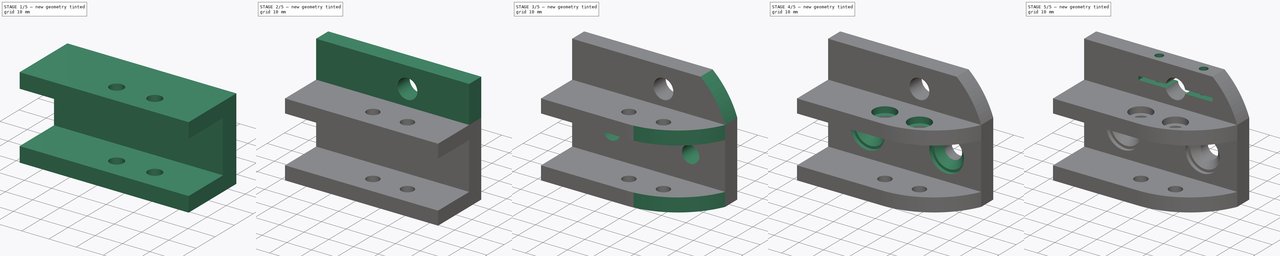
[diagram: build sequence overview — one tinted view per stage of 5, left to right]
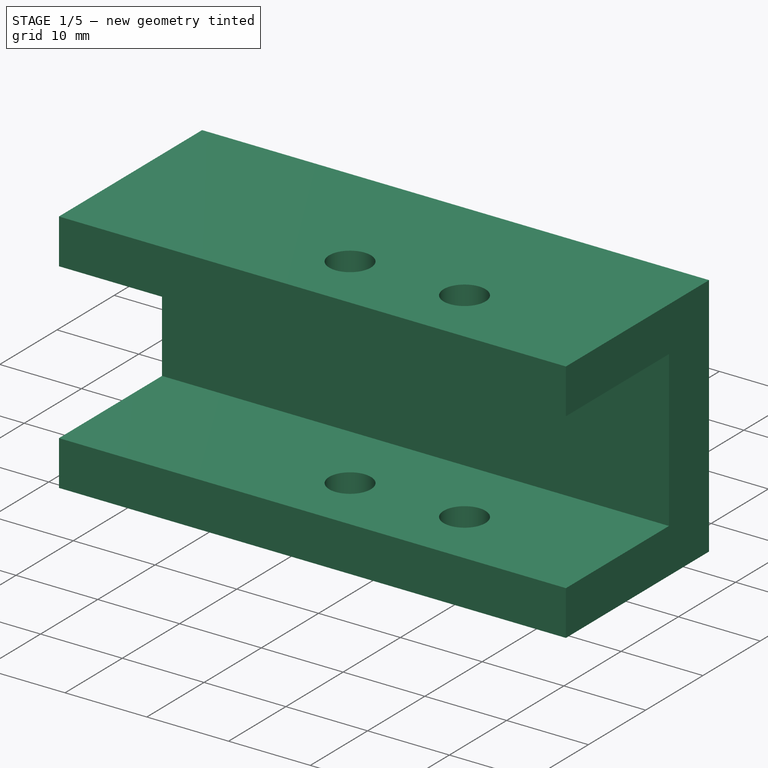
[diagram: stage 1 of 5 — iso view after this stage's code; geometry added in this stage tinted green]
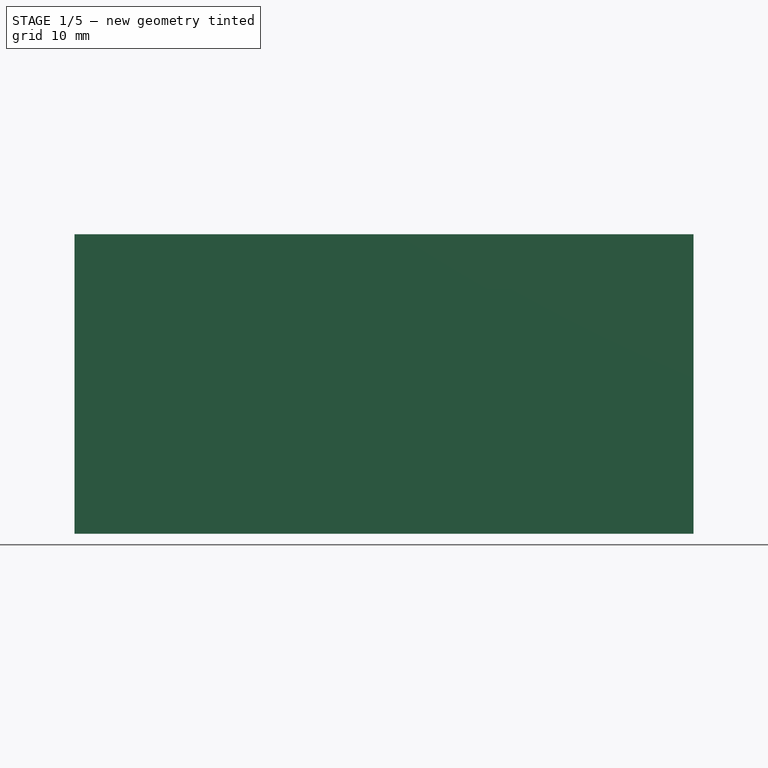
[diagram: stage 1 of 5 — front view after this stage's code; geometry added in this stage tinted green]
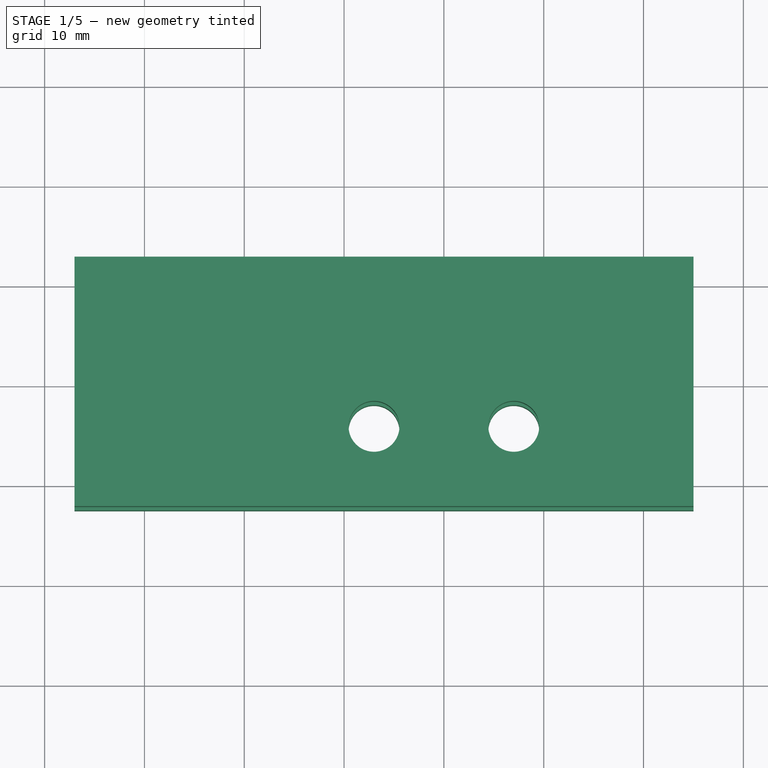
[diagram: stage 1 of 5 — top view after this stage's code; geometry added in this stage tinted green]
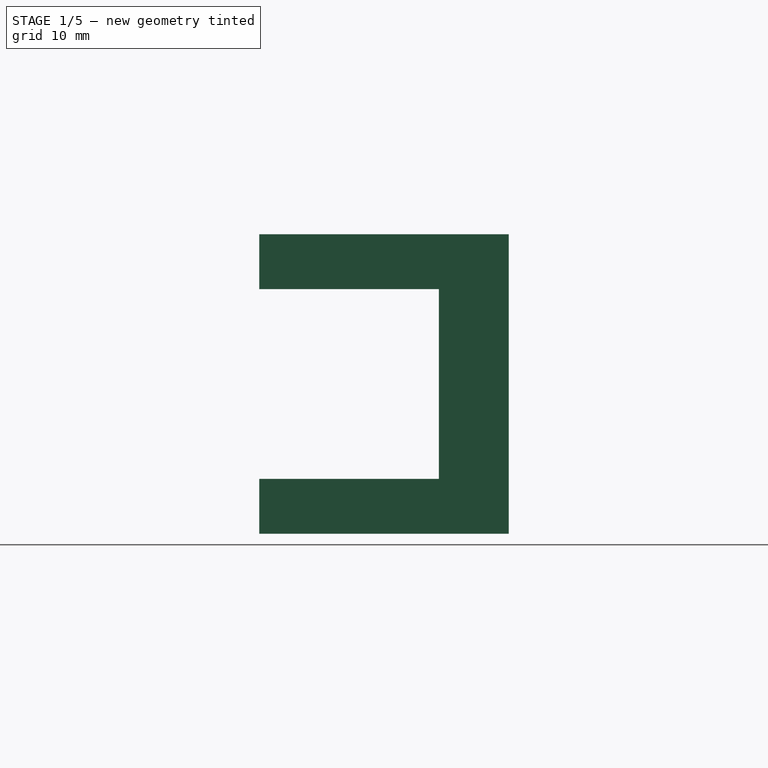
[diagram: stage 1 of 5 — right view after this stage's code; geometry added in this stage tinted green]
FCSTD DOCUMENT  (FreeCAD 0.17R10495 (Git))
Label: idler_holder_e
License: All rights reserved
LicenseURL: http://en.wikipedia.org/wiki/All_rights_reserved
objects: Sketcher::SketchObject×16, PartDesign::Pocket×13, PartDesign::Pad×3, PartDesign::Chamfer×1, PartDesign::Body×1
note: 50 computed .brp shape members not serialized (recipe doc carries the construction recipe); baked Part::Feature solids carry a one-line shape summary decoded from their .brp

FEATURE [Sketcher::SketchObject] Sketch
  MapMode = 5
  Support = -> [XY_Plane]
  sketch-geometry (4):
    g0: LineSegment StartX=-37 StartY=12.5 StartZ=0 EndX=25 EndY=12.5 EndZ=0
    g1: LineSegment StartX=25 StartY=12.5 StartZ=0 EndX=25 EndY=-12.5 EndZ=0
    g2: LineSegment StartX=25 StartY=-12.5 StartZ=0 EndX=-37 EndY=-12.5 EndZ=0
    g3: LineSegment StartX=-37 StartY=-12.5 StartZ=0 EndX=-37 EndY=12.5 EndZ=0
  constraints (12):
    c: Coincident(g0,g1)
    c: Coincident(g1,g2)
    c: Coincident(g2,g3)
    c: Coincident(g3,g0)
    c: Horizontal(g0)
    c: Horizontal(g2)
    c: Vertical(g1)
    c: Vertical(g3)
    c: DistanceX(g0,g0) = 62
    c: DistanceY(g3,g3) = 25
    c: Symmetric(g0,g2,g-1)
    c: DistanceX(g-1,g0) = 25
FEATURE [PartDesign::Pad] Pad
  Length = 30
  Length2 = 100
  Midplane = true
  Profile = -> Sketch
  Type = 0
FEATURE [Sketcher::SketchObject] Sketch001
  ExternalGeometry = -> [Pad]
  MapMode = 5
  Placement = pos=(0,0,0) rot=(0.57735,0.57735,0.57735;2.0944rad)
  Support = -> [YZ_Plane]
  sketch-geometry (4):
    g0: LineSegment StartX=-12.5 StartY=9.5 StartZ=0 EndX=5.5 EndY=9.5 EndZ=0
    g1: LineSegment StartX=5.5 StartY=9.5 StartZ=0 EndX=5.5 EndY=-9.5 EndZ=0
    g2: LineSegment StartX=5.5 StartY=-9.5 StartZ=0 EndX=-12.5 EndY=-9.5 EndZ=0
    g3: LineSegment StartX=-12.5 StartY=-9.5 StartZ=0 EndX=-12.5 EndY=9.5 EndZ=0
  constraints (12):
    c: Coincident(g0,g1)
    c: Coincident(g1,g2)
    c: Coincident(g2,g3)
    c: Coincident(g3,g0)
    c: Horizontal(g0)
    c: Horizontal(g2)
    c: Vertical(g1)
    c: Vertical(g3)
    c: PointOnObject(g0,g-3)
    c: DistanceY(g1,g0) = 19
    c: Symmetric(g0,g2,g-1)
    c: DistanceX(g0,g-4) = 7
FEATURE [PartDesign::Pocket] Pocket
  BaseFeature = -> Pad
  Length = 5
  Midplane = true
  Profile = -> Sketch001
  Type = 1
FEATURE [Sketcher::SketchObject] Sketch002
  ExternalGeometry = -> [Pocket]
  MapMode = 5
  Support = -> [XY_Plane]
  sketch-geometry (2):
    g0: Circle CenterX=-7 CenterY=-4.5 CenterZ=0 NormalX=0 NormalY=0 NormalZ=1 Radius=2.55
    g1: Circle CenterX=7 CenterY=-4.5 CenterZ=0 NormalX=0 NormalY=0 NormalZ=1 Radius=2.55
  constraints (5):
    c: Radius(g1) = 2.55
    c: Equal(g1,g0)
    c: Symmetric(g0,g1,g-2)
    c: DistanceX(g0,g1) = 14
    c: DistanceY(g0,g-3) = 10
FEATURE [PartDesign::Pocket] Pocket001
  BaseFeature = -> Pocket
  Length = 5
  Midplane = true
  Profile = -> Sketch002
  Type = 1
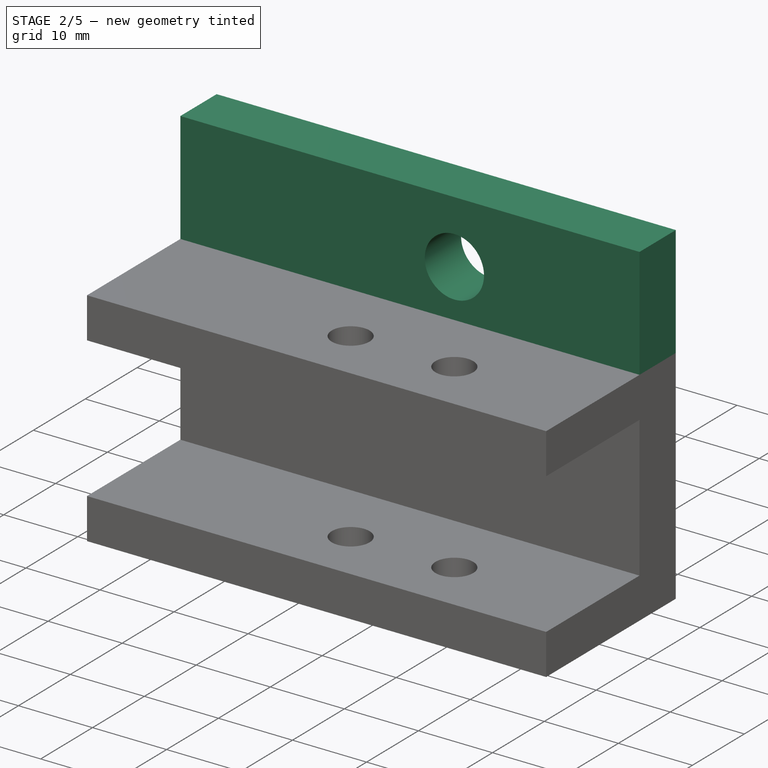
[diagram: stage 2 of 5 — iso view after this stage's code; geometry added in this stage tinted green]
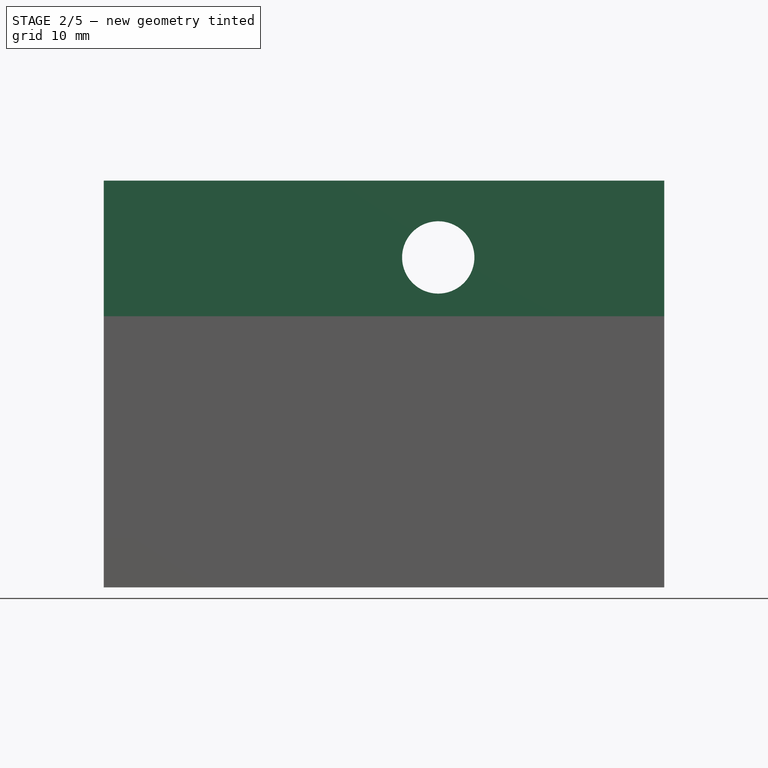
[diagram: stage 2 of 5 — front view after this stage's code; geometry added in this stage tinted green]
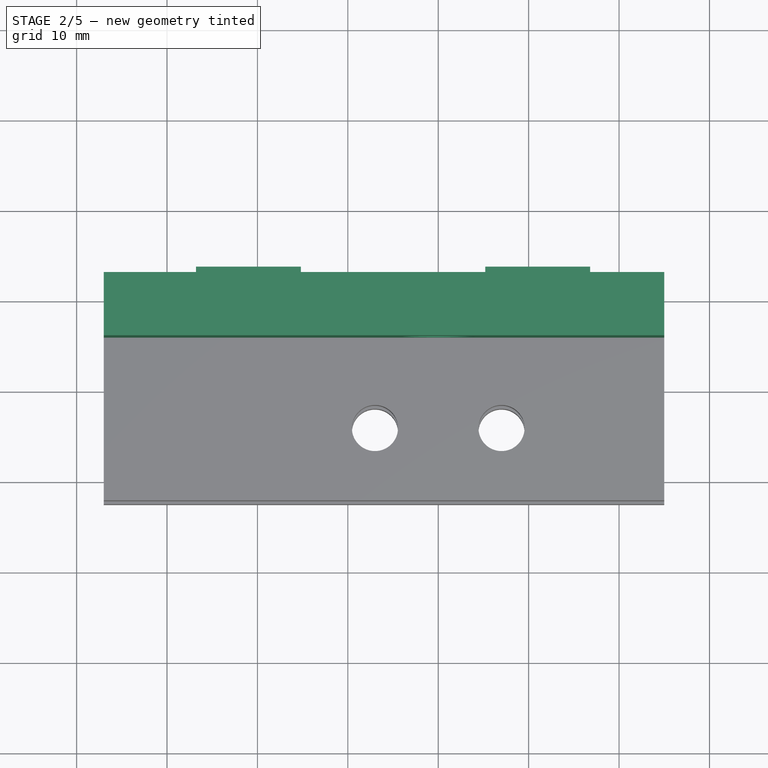
[diagram: stage 2 of 5 — top view after this stage's code; geometry added in this stage tinted green]
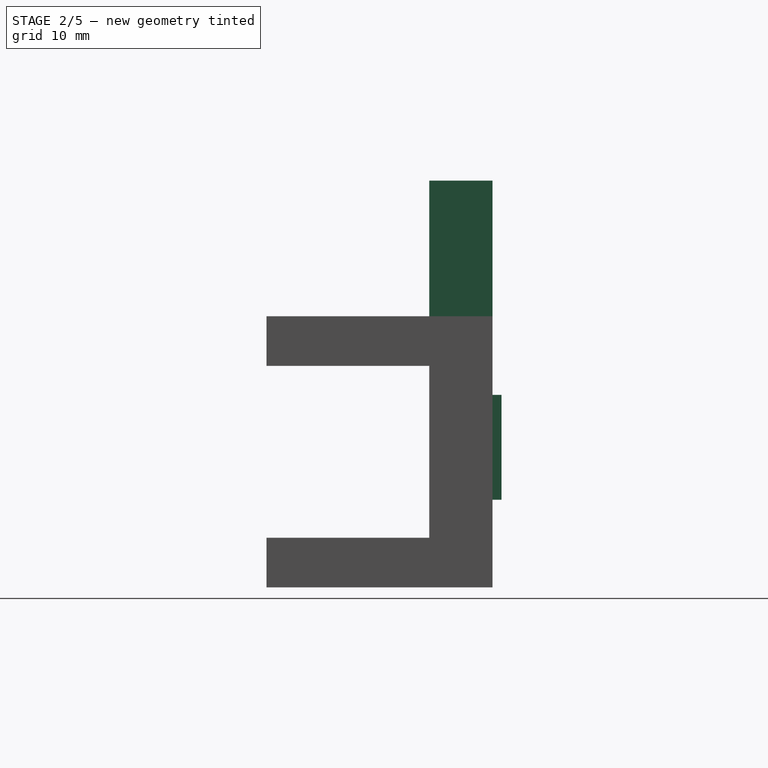
[diagram: stage 2 of 5 — right view after this stage's code; geometry added in this stage tinted green]
FEATURE [Sketcher::SketchObject] Sketch003
  ExternalGeometry = -> [Pocket001]
  MapMode = 5
  Support = -> [XY_Plane]
  sketch-geometry (4):
    g0: LineSegment StartX=-37 StartY=12.5 StartZ=0 EndX=25 EndY=12.5 EndZ=0
    g1: LineSegment StartX=25 StartY=12.5 StartZ=0 EndX=25 EndY=5.5 EndZ=0
    g2: LineSegment StartX=25 StartY=5.5 StartZ=0 EndX=-37 EndY=5.5 EndZ=0
    g3: LineSegment StartX=-37 StartY=5.5 StartZ=0 EndX=-37 EndY=12.5 EndZ=0
  constraints (10):
    c: Coincident(g0,g1)
    c: Coincident(g1,g2)
    c: Coincident(g2,g3)
    c: Coincident(g3,g0)
    c: Horizontal(g0)
    c: Horizontal(g2)
    c: Vertical(g1)
    c: Vertical(g3)
    c: Coincident(g0,g-3)
    c: Coincident(g1,g-4)
FEATURE [PartDesign::Pad] Pad001
  BaseFeature = -> Pocket001
  Length = 30
  Length2 = 100
  Profile = -> Sketch003
  Type = 0
FEATURE [Sketcher::SketchObject] Sketch004
  ExternalGeometry = -> [Pad001]
  MapMode = 5
  Placement = pos=(0,0,0) rot=(1,0,0;1.5708rad)
  Support = -> [XZ_Plane]
  sketch-geometry (1):
    g0: Circle CenterX=0 CenterY=21.5 CenterZ=0 NormalX=0 NormalY=0 NormalZ=1 Radius=4
  constraints (3):
    c: PointOnObject(g0,g-2)
    c: Radius(g0) = 4
    c: DistanceY(g-3,g0) = 12
FEATURE [PartDesign::Pocket] Pocket002
  BaseFeature = -> Pad001
  Length = 5
  Profile = -> Sketch004
  Type = 1
FEATURE [Sketcher::SketchObject] Sketch005
  ExternalGeometry = -> [Pocket002]
  MapMode = 5
  Placement = pos=(0,0,0) rot=(0.57735,0.57735,0.57735;2.0944rad)
  Support = -> [YZ_Plane]
  sketch-geometry (4):
    g0: LineSegment StartX=12.5 StartY=6.3 StartZ=0 EndX=13.5 EndY=6.3 EndZ=0
    g1: LineSegment StartX=13.5 StartY=6.3 StartZ=0 EndX=13.5 EndY=-5.3 EndZ=0
    g2: LineSegment StartX=13.5 StartY=-5.3 StartZ=0 EndX=12.5 EndY=-5.3 EndZ=0
    g3: LineSegment StartX=12.5 StartY=-5.3 StartZ=0 EndX=12.5 EndY=6.3 EndZ=0
  constraints (12):
    c: Coincident(g0,g1)
    c: Coincident(g1,g2)
    c: Coincident(g2,g3)
    c: Coincident(g3,g0)
    c: Horizontal(g0)
    c: Horizontal(g2)
    c: Vertical(g1)
    c: Vertical(g3)
    c: DistanceX(g2,g2) = -1
    c: DistanceY(g-3,g2) = 9.7
    c: DistanceY(g3,g3) = 11.6
    c: DistanceX(g-3,g2) = 0
FEATURE [PartDesign::Pad] Pad002
  BaseFeature = -> Pocket002
  Length = 16.8
  Length2 = 26.8
  Profile = -> Sketch005
  Type = 4
FEATURE [Sketcher::SketchObject] Sketch012
  ExternalGeometry = -> [Pad002]
  MapMode = 5
  Placement = pos=(0,0,-5.3) rot=(1,0,0;3.14159rad)
  Support = -> [Pad002]
  sketch-geometry (4):
    g0: LineSegment StartX=-15.2 StartY=-13.5 StartZ=0 EndX=5.2 EndY=-13.5 EndZ=0
    g1: LineSegment StartX=5.2 StartY=-13.5 StartZ=0 EndX=5.2 EndY=-12.5 EndZ=0
    g2: LineSegment StartX=5.2 StartY=-12.5 StartZ=0 EndX=-15.2 EndY=-12.5 EndZ=0
    g3: LineSegment StartX=-15.2 StartY=-12.5 StartZ=0 EndX=-15.2 EndY=-13.5 EndZ=0
  constraints (10):
    c: Coincident(g0,g1)
    c: Coincident(g1,g2)
    c: Coincident(g2,g3)
    c: Coincident(g3,g0)
    c: Horizontal(g0)
    c: Horizontal(g2)
    c: Vertical(g1)
    c: Vertical(g3)
    c: DistanceX(g0,g0) = 20.4
    c: DistanceX(g-2,g1) = 5.2
FEATURE [PartDesign::Pocket] Pocket003
  Length = 0
  Profile = -> Sketch012
  Type = 3
  UpToFace = -> Pad002 [Face16]
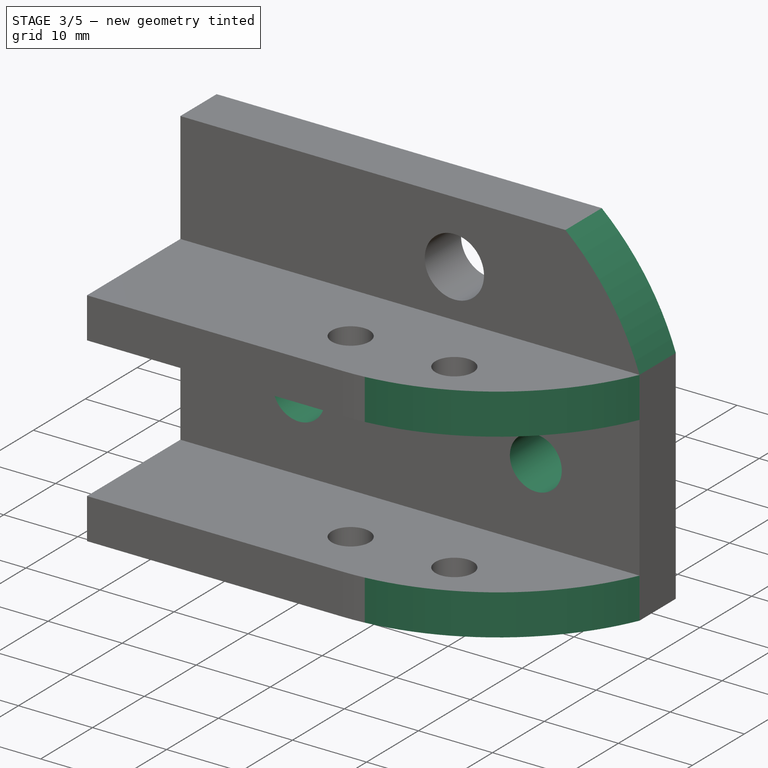
[diagram: stage 3 of 5 — iso view after this stage's code; geometry added in this stage tinted green]
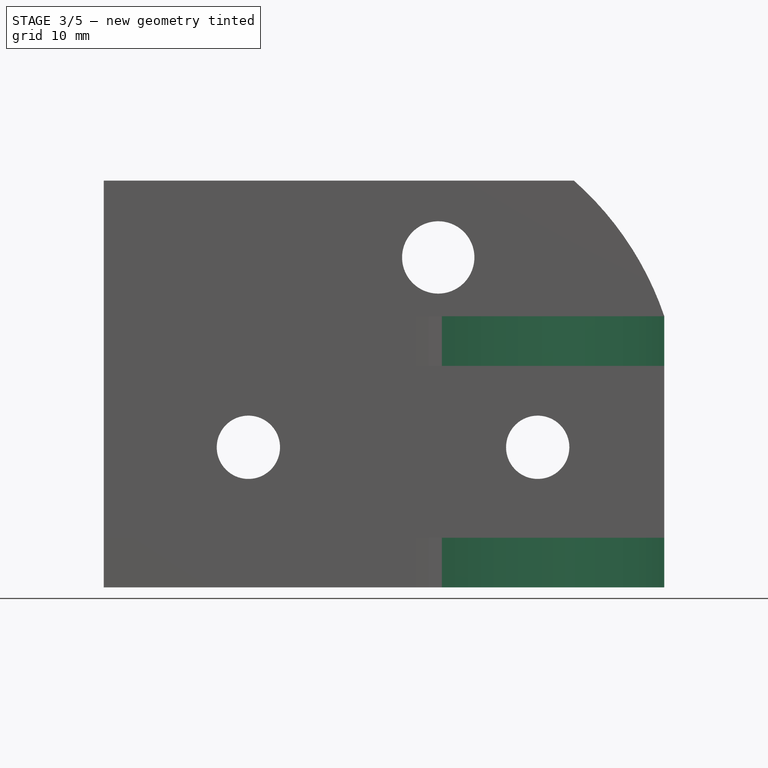
[diagram: stage 3 of 5 — front view after this stage's code; geometry added in this stage tinted green]
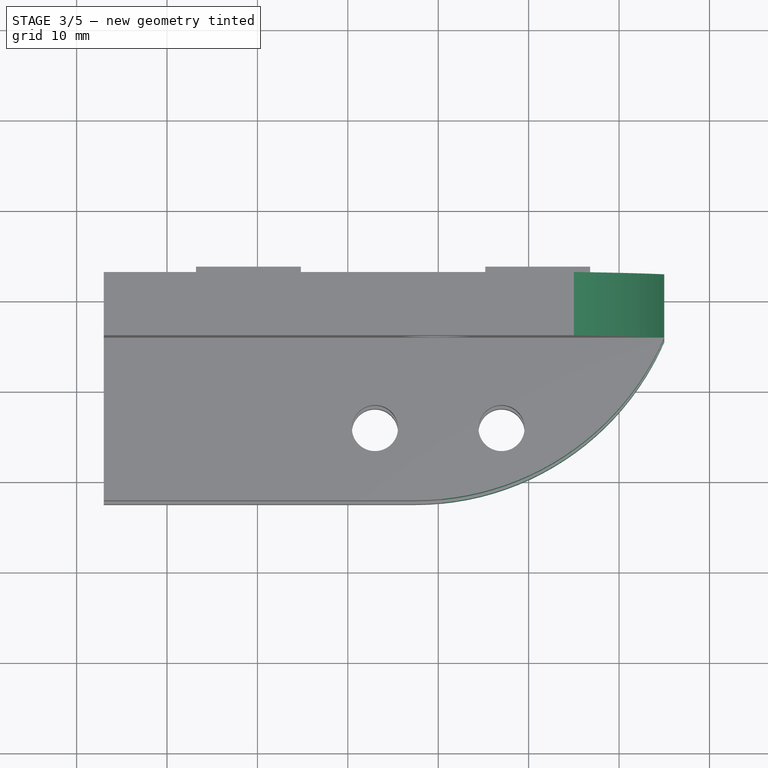
[diagram: stage 3 of 5 — top view after this stage's code; geometry added in this stage tinted green]
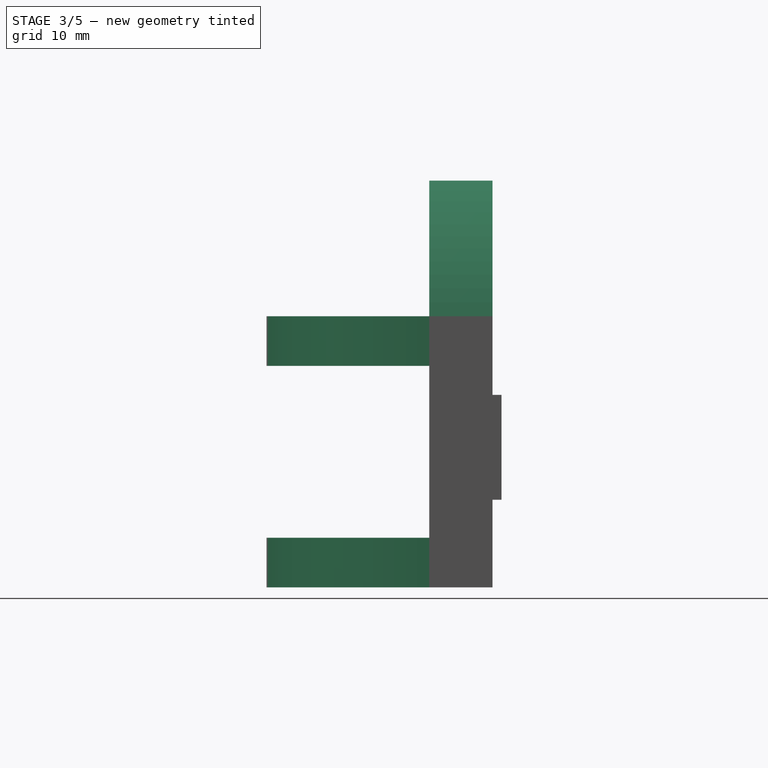
[diagram: stage 3 of 5 — right view after this stage's code; geometry added in this stage tinted green]
FEATURE [Sketcher::SketchObject] Sketch013
  ExternalGeometry = -> [Pocket003]
  MapMode = 5
  Placement = pos=(0,13.5,0) rot=(0,0.707107,0.707107;3.14159rad)
  Support = -> [Pocket003]
  sketch-geometry (2):
    g0: Circle CenterX=-11 CenterY=0.5 CenterZ=0 NormalX=0 NormalY=0 NormalZ=1 Radius=3.5
    g1: Circle CenterX=21 CenterY=0.5 CenterZ=0 NormalX=0 NormalY=0 NormalZ=1 Radius=3.5
  constraints (4):
    c: Symmetric(g-3,g-4,g0)
    c: Radius(g0) = 3.5
    c: Symmetric(g-5,g-6,g1)
    c: Radius(g1) = 3.5
FEATURE [PartDesign::Pocket] Pocket004
  BaseFeature = -> Pocket003
  Length = 5
  Profile = -> Sketch013
  Type = 1
FEATURE [Sketcher::SketchObject] Sketch014
  ExternalGeometry = -> [Pocket004]
  MapMode = 5
  Support = -> [XY_Plane]
  sketch-geometry (3):
    g0: ArcOfCircle CenterX=-2.49545 CenterY=17.5 CenterZ=0 NormalX=0 NormalY=0 NormalZ=1 Radius=30 StartAngle=4.71239 EndAngle=5.87167
    g1: LineSegment StartX=25 StartY=5.5 StartZ=0 EndX=25 EndY=-12.5 EndZ=0
    g2: LineSegment StartX=25 StartY=-12.5 StartZ=0 EndX=-2.49549 EndY=-12.5 EndZ=0
  constraints (9):
    c: Radius(g0) = 30
    c: Coincident(g0,g2)
    c: Tangent(g0,g2)
    c: Horizontal(g2)
    c: Coincident(g1,g2)
    c: Coincident(g1,g-3)
    c: Vertical(g1)
    c: Coincident(g0,g1)
    c: Coincident(g0,g-4)
FEATURE [PartDesign::Pocket] Pocket005
  BaseFeature = -> Pocket004
  Length = 5
  Midplane = true
  Profile = -> Sketch014
  Type = 1
FEATURE [Sketcher::SketchObject] Sketch015
  ExternalGeometry = -> [Pocket005]
  MapMode = 5
  Placement = pos=(0,0,0) rot=(1,0,0;1.5708rad)
  Support = -> [XZ_Plane]
  sketch-geometry (3):
    g0: ArcOfCircle CenterX=-8.13942 CenterY=3.74039 CenterZ=0 NormalX=0 NormalY=0 NormalZ=1 Radius=35 StartAngle=0.327528 EndAngle=0.848477
    g1: LineSegment StartX=25 StartY=15 StartZ=0 EndX=25 EndY=30 EndZ=0
    g2: LineSegment StartX=25 StartY=30 StartZ=0 EndX=15 EndY=30 EndZ=0
  constraints (9):
    c: Coincident(g0,g1)
    c: Coincident(g1,g2)
    c: Coincident(g2,g0)
    c: Horizontal(g2)
    c: Vertical(g1)
    c: Coincident(g0,g-3)
    c: Coincident(g1,g-3)
    c: Radius(g0) = 35
    c: DistanceX(g2,g2) = 10
FEATURE [PartDesign::Pocket] Pocket006
  BaseFeature = -> Pocket005
  Length = 5
  Profile = -> Sketch015
  Type = 1
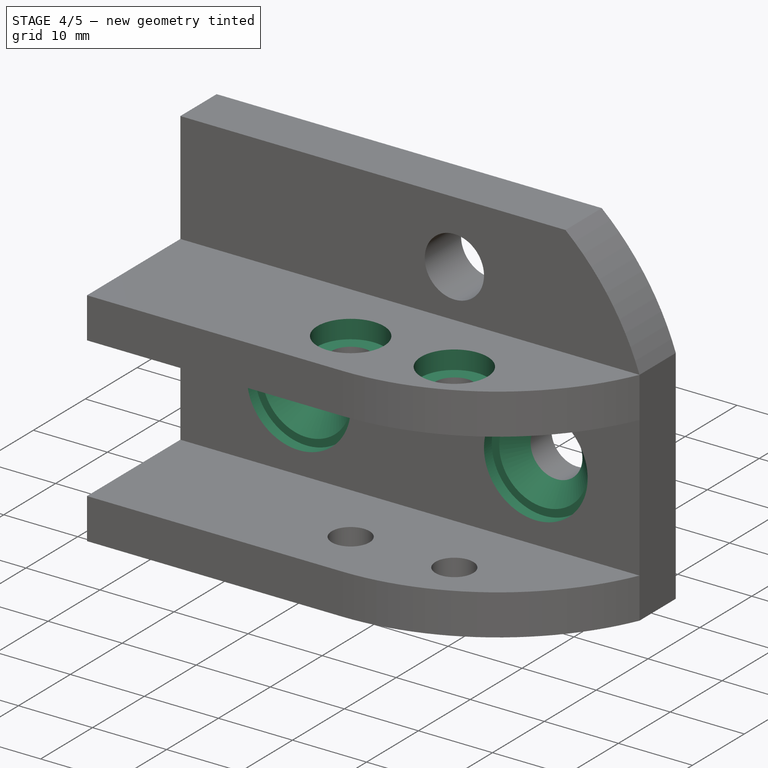
[diagram: stage 4 of 5 — iso view after this stage's code; geometry added in this stage tinted green]
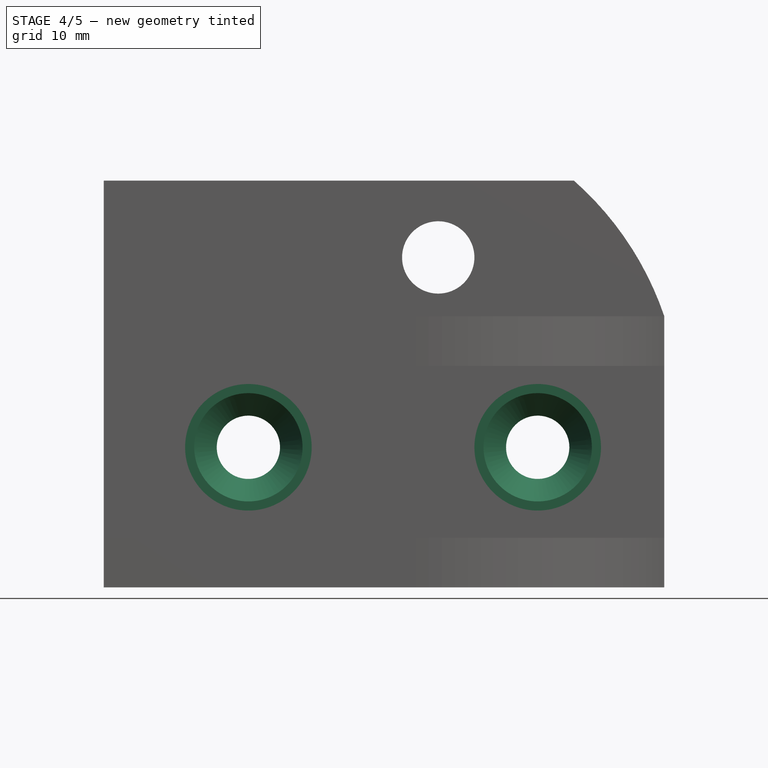
[diagram: stage 4 of 5 — front view after this stage's code; geometry added in this stage tinted green]
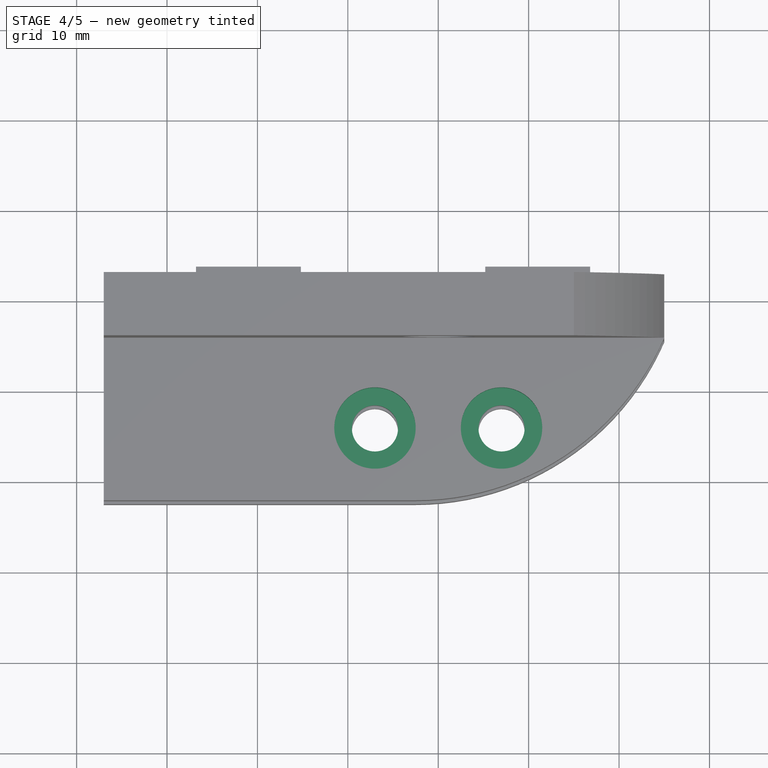
[diagram: stage 4 of 5 — top view after this stage's code; geometry added in this stage tinted green]
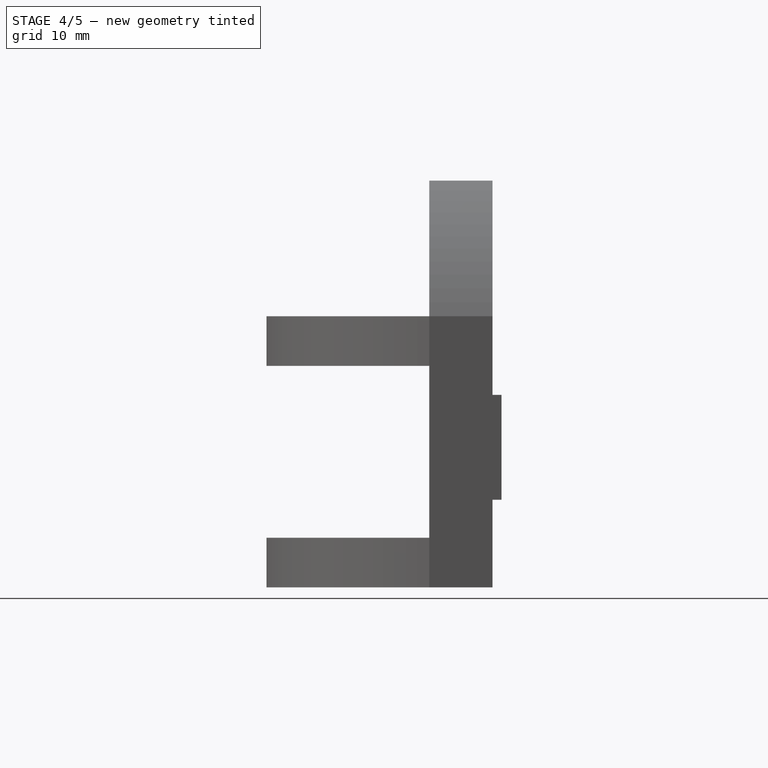
[diagram: stage 4 of 5 — right view after this stage's code; geometry added in this stage tinted green]
FEATURE [Sketcher::SketchObject] Sketch016
  ExternalGeometry = -> [Pocket006]
  MapMode = 5
  Placement = pos=(0,0,0) rot=(1,0,0;1.5708rad)
  Support = -> [XZ_Plane]
  sketch-geometry (2):
    g0: Circle CenterX=-21 CenterY=0.5 CenterZ=0 NormalX=0 NormalY=0 NormalZ=1 Radius=7
    g1: Circle CenterX=11 CenterY=0.5 CenterZ=0 NormalX=0 NormalY=0 NormalZ=1 Radius=7
  constraints (3):
    c: Radius(g1) = 7
    c: Equal(g1,g0)
    c: Coincident(g0,g-3)
FEATURE [PartDesign::Pocket] Pocket007
  BaseFeature = -> Pocket006
  Length = 7
  Profile = -> Sketch016
  Type = 0
FEATURE [PartDesign::Chamfer] Chamfer
  Base = -> Pocket007 [Edge105,Edge106]
  BaseFeature = -> Pocket007
  Size = 2.49
FEATURE [Sketcher::SketchObject] Sketch018
  MapMode = 5
  Placement = pos=(0,0,-15) rot=(1,0,0;3.14159rad)
  sketch-geometry (14):
    g0: LineSegment StartX=-9.33827 StartY=0.45 StartZ=0 EndX=-4.66173 EndY=0.45 EndZ=0
    g1: LineSegment StartX=-4.66173 StartY=0.45 StartZ=0 EndX=-2.32346 EndY=4.5 EndZ=0
    g2: LineSegment StartX=-2.32346 StartY=4.5 StartZ=0 EndX=-4.66173 EndY=8.55 EndZ=0
    g3: LineSegment StartX=-4.66173 StartY=8.55 StartZ=0 EndX=-9.33827 EndY=8.55 EndZ=0
    g4: LineSegment StartX=-9.33827 StartY=8.55 StartZ=0 EndX=-11.6765 EndY=4.5 EndZ=0
    g5: LineSegment StartX=-11.6765 StartY=4.5 StartZ=0 EndX=-9.33827 EndY=0.45 EndZ=0
    g6: Circle [constr] CenterX=-7 CenterY=4.5 CenterZ=0 NormalX=0 NormalY=0 NormalZ=1 Radius=4.67654
    g7: LineSegment StartX=9.33827 StartY=0.45 StartZ=0 EndX=11.6765 EndY=4.5 EndZ=0
    g8: LineSegment StartX=11.6765 StartY=4.5 StartZ=0 EndX=9.33827 EndY=8.55 EndZ=0
    g9: LineSegment StartX=9.33827 StartY=8.55 StartZ=0 EndX=4.66173 EndY=8.55 EndZ=0
    g10: LineSegment StartX=4.66173 StartY=8.55 StartZ=0 EndX=2.32346 EndY=4.5 EndZ=0
    g11: LineSegment StartX=2.32346 StartY=4.5 StartZ=0 EndX=4.66173 EndY=0.45 EndZ=0
    g12: LineSegment StartX=4.66173 StartY=0.45 StartZ=0 EndX=9.33827 EndY=0.45 EndZ=0
    g13: Circle [constr] CenterX=7 CenterY=4.5 CenterZ=0 NormalX=0 NormalY=0 NormalZ=1 Radius=4.67654
  constraints (30):
    c: Coincident(g0,g1)
    c: Coincident(g1,g2)
    c: Coincident(g2,g3)
    c: Coincident(g3,g4)
    c: Coincident(g4,g5)
    c: Coincident(g5,g0)
    c: Equal(g0, g1-g5) x5
    c: PointOnObject(g0,g6)
    c: PointOnObject(g1,g6)
    c: PointOnObject(g2,g6)
    c: PointOnObject(g3,g6)
    c: PointOnObject(g4,g6)
    c: PointOnObject(g5,g6)
    c: Coincident(g7,g8)
    c: Coincident(g8,g9)
    c: Coincident(g9,g10)
    c: Coincident(g10,g11)
    c: Coincident(g11,g12)
    c: Coincident(g12,g7)
    c: Equal(g7, g8-g12) x5
    c: PointOnObject(g7,g13)
    c: PointOnObject(g8,g13)
    c: PointOnObject(g9,g13)
    c: PointOnObject(g10,g13)
    c: PointOnObject(g11,g13)
    c: PointOnObject(g12,g13)
    c: Horizontal(g9)
    c: Horizontal(g3)
    c: DistanceY(g0,g3) = 8.1
    c: DistanceY(g11,g9) = 8.1
FEATURE [Sketcher::SketchObject] Sketch019
  MapMode = 5
  Placement = pos=(0,0,15) rot=(0,0,1;0rad)
  sketch-geometry (2):
    g0: Circle CenterX=-7 CenterY=-4.5 CenterZ=0 NormalX=0 NormalY=0 NormalZ=1 Radius=4.5
    g1: Circle CenterX=7 CenterY=-4.5 CenterZ=0 NormalX=0 NormalY=0 NormalZ=1 Radius=4.5
  constraints (2):
    c: Radius(g1) = 4.5
    c: Equal(g1,g0)
FEATURE [PartDesign::Pocket] Pocket008
  BaseFeature = -> Chamfer
  Length = 2.5
  Profile = -> Sketch018
  Type = 0
FEATURE [PartDesign::Pocket] Pocket009
  BaseFeature = -> Pocket008
  Length = 2.5
  Profile = -> Sketch019
  Type = 0
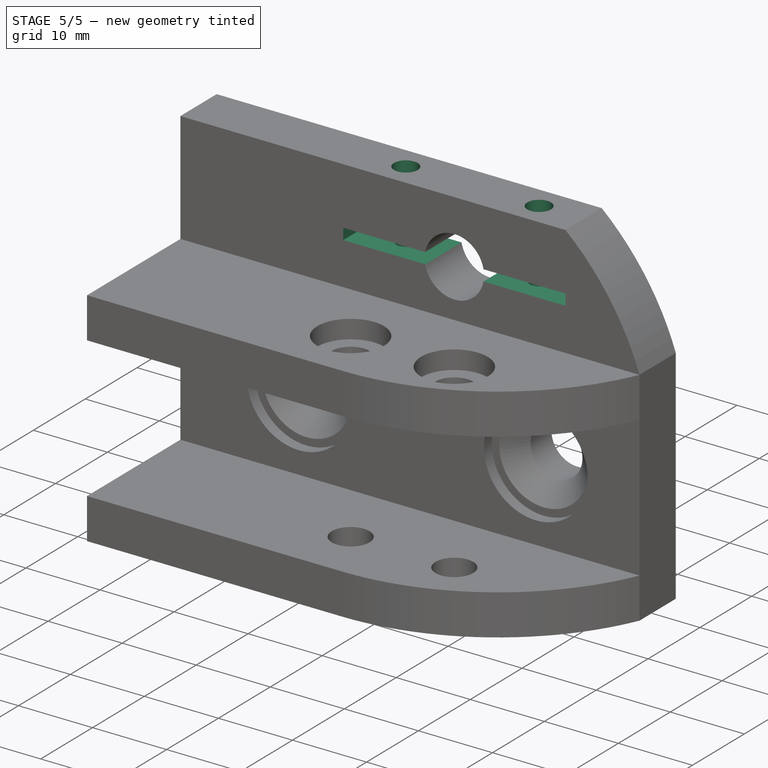
[diagram: stage 5 of 5 — iso view after this stage's code; geometry added in this stage tinted green]
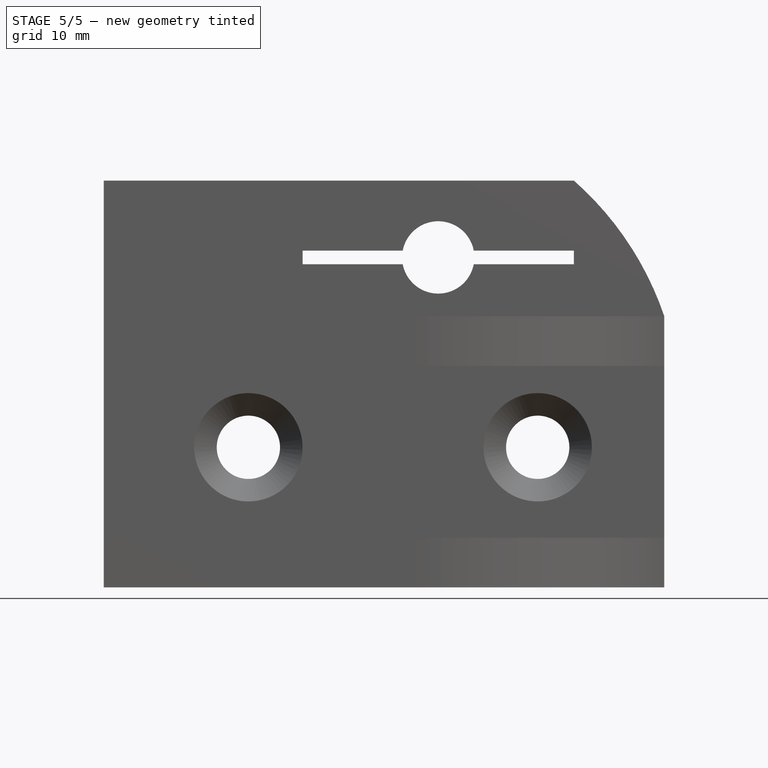
[diagram: stage 5 of 5 — front view after this stage's code; geometry added in this stage tinted green]
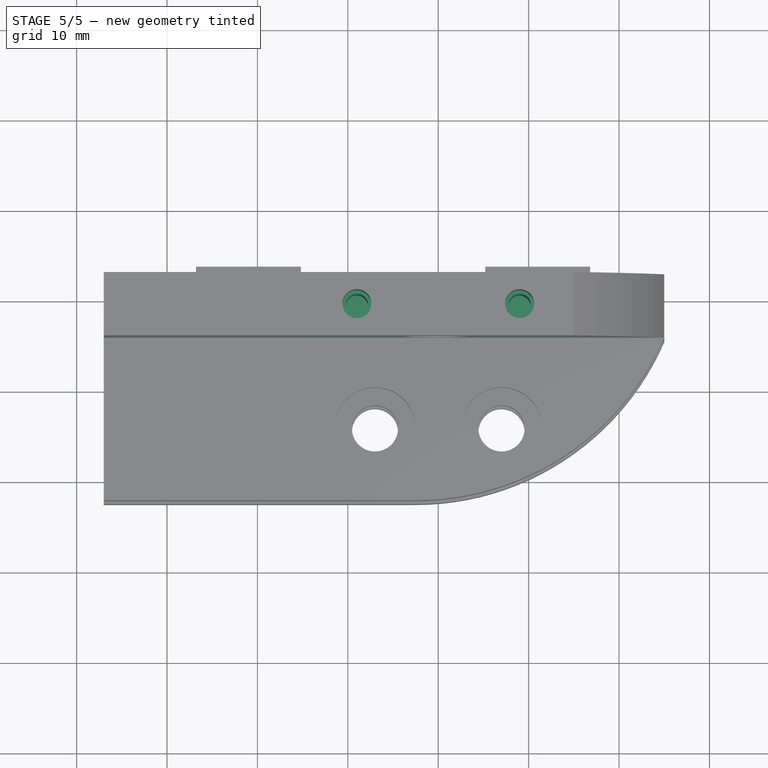
[diagram: stage 5 of 5 — top view after this stage's code; geometry added in this stage tinted green]
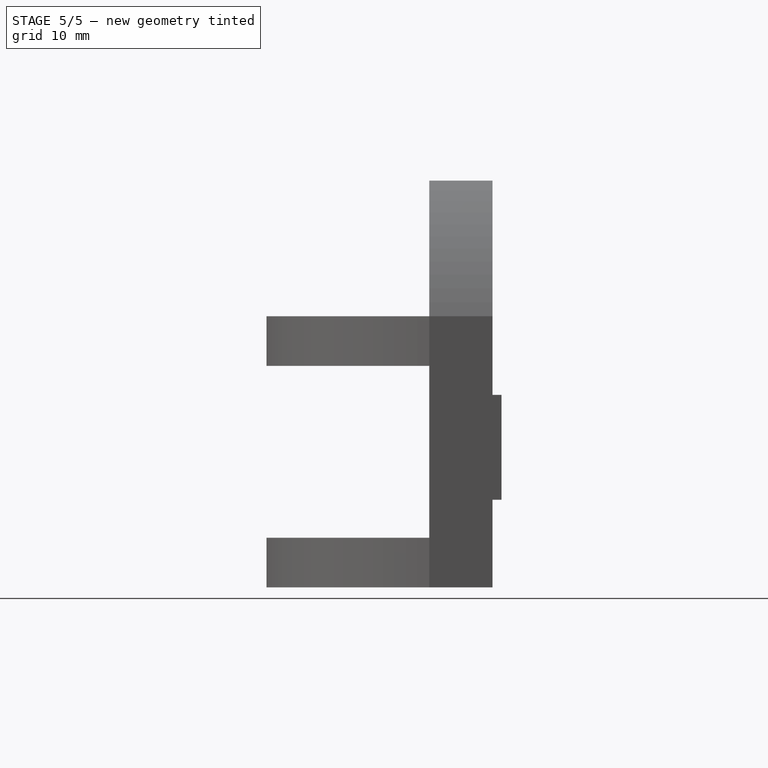
[diagram: stage 5 of 5 — right view after this stage's code; geometry added in this stage tinted green]
FEATURE [Sketcher::SketchObject] Sketch020
  ExternalGeometry = -> [Pocket009]
  MapMode = 5
  Placement = pos=(0,5.5,0) rot=(1,0,0;1.5708rad)
  Support = -> [Pocket009]
  sketch-geometry (4):
    g0: LineSegment StartX=-15 StartY=22.25 StartZ=0 EndX=15 EndY=22.25 EndZ=0
    g1: LineSegment StartX=15 StartY=22.25 StartZ=0 EndX=15 EndY=20.75 EndZ=0
    g2: LineSegment StartX=15 StartY=20.75 StartZ=0 EndX=-15 EndY=20.75 EndZ=0
    g3: LineSegment StartX=-15 StartY=20.75 StartZ=0 EndX=-15 EndY=22.25 EndZ=0
  constraints (11):
    c: Coincident(g0,g1)
    c: Coincident(g1,g2)
    c: Coincident(g2,g3)
    c: Coincident(g3,g0)
    c: Horizontal(g0)
    c: Horizontal(g2)
    c: Vertical(g1)
    c: Vertical(g3)
    c: Symmetric(g0,g1,g-3)
    c: DistanceX(g0,g0) = 30
    c: DistanceY(g3,g3) = 1.5
FEATURE [PartDesign::Pocket] Pocket010
  BaseFeature = -> Pocket009
  Length = 5
  Profile = -> Sketch020
  Type = 1
FEATURE [Sketcher::SketchObject] Sketch021
  ExternalGeometry = -> [Pocket010]
  MapMode = 5
  Placement = pos=(0,0,30) rot=(0,0,1;0rad)
  Support = -> [Pocket010]
  sketch-geometry (2):
    g0: Circle CenterX=9 CenterY=9 CenterZ=0 NormalX=0 NormalY=0 NormalZ=1 Radius=1.25
    g1: Circle CenterX=-9 CenterY=9 CenterZ=0 NormalX=0 NormalY=0 NormalZ=1 Radius=1.25
  constraints (6):
    c: Radius(g1) = 1.25
    c: Equal(g1,g0)
    c: DistanceY(g0,g-3) = 3.5
    c: DistanceY(g1,g0) = 0
    c: Symmetric(g1,g0,g-2)
    c: DistanceX(g1,g-1) = 9
FEATURE [PartDesign::Pocket] Pocket011
  BaseFeature = -> Pocket010
  Length = 22
  Profile = -> Sketch021
  Type = 0
FEATURE [Sketcher::SketchObject] Sketch022
  ExternalGeometry = -> [Pocket011]
  MapMode = 5
  Placement = pos=(0,0,30) rot=(0,0,1;0rad)
  Support = -> [Pocket011]
  sketch-geometry (2):
    g0: Circle CenterX=-9 CenterY=9 CenterZ=0 NormalX=0 NormalY=0 NormalZ=1 Radius=1.6
    g1: Circle CenterX=9 CenterY=9 CenterZ=0 NormalX=0 NormalY=0 NormalZ=1 Radius=1.6
FEATURE [PartDesign::Pocket] Pocket012
  BaseFeature = -> Pocket011
  Length = 8
  Profile = -> Sketch022
  Type = 0
FEATURE [PartDesign::Body] Body
  Group = -> [Sketch,Pad,Sketch001,Sketch005,Pocket,Sketch002,Pocket001,Sketch003,Pad001,Sketch004,Pocket002,Pad002,Sketch012,Pocket003,Sketch013,Pocket004,Sketch014,Pocket005,Sketch015,Pocket006,Sketch016,Pocket007,Chamfer,Sketch018,Pocket008,Sketch019,Pocket009,Sketch020,Pocket010,Sketch021,Pocket011,Sketch022,Pocket012]
  Origin = -> BodyOrigin
  Tip = -> Pocket012
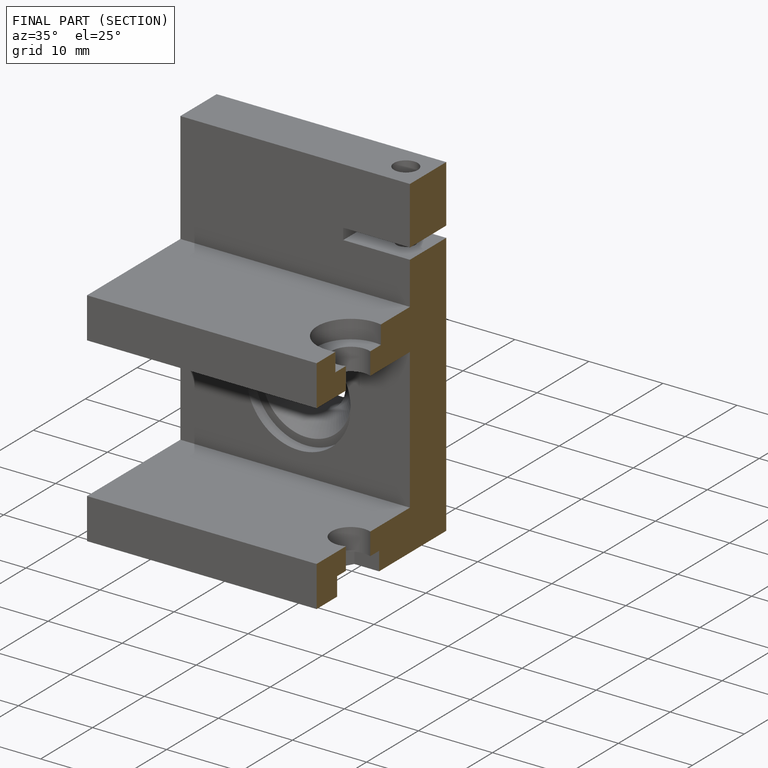
[diagram: finished part — half-section view (interior)]
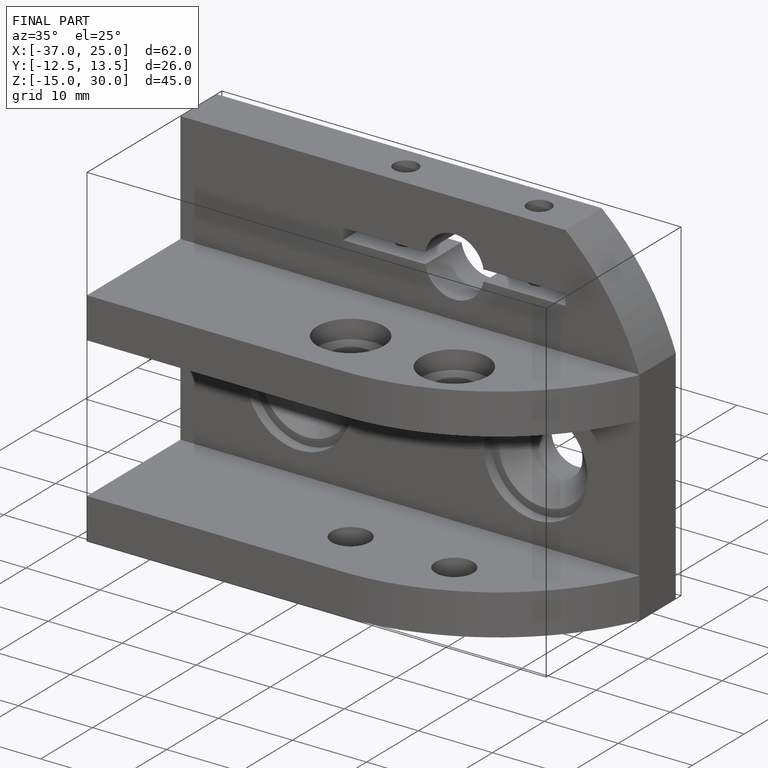
[diagram: finished part — iso view with bounding-box wireframe]
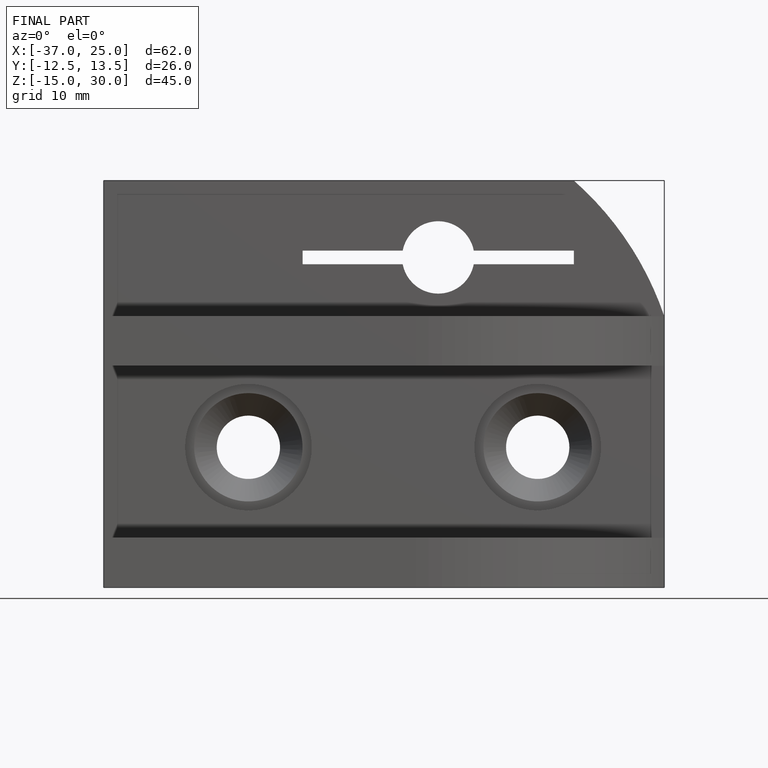
[diagram: finished part — front view with bounding-box wireframe]
